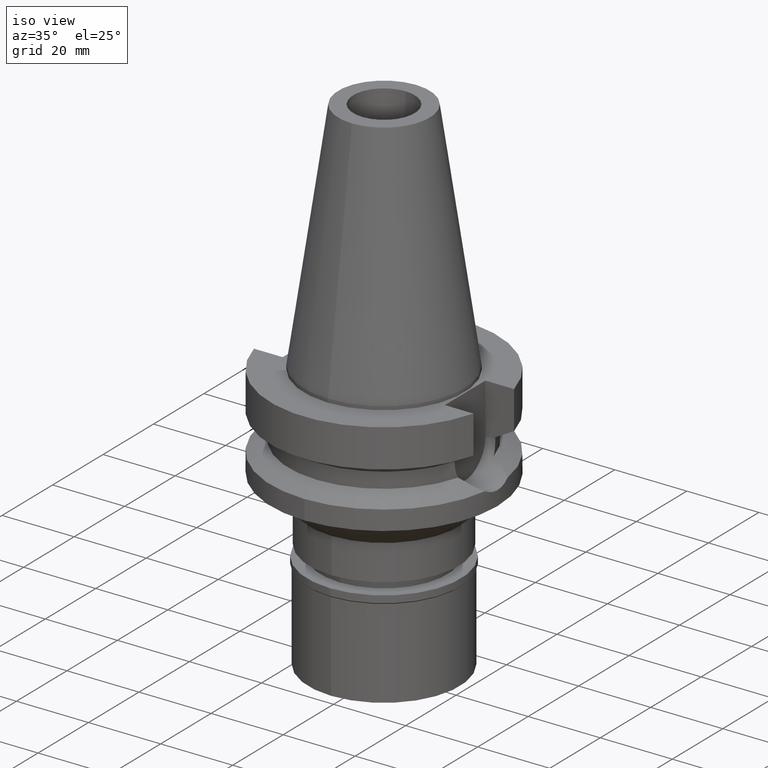
[diagram: clean part render]
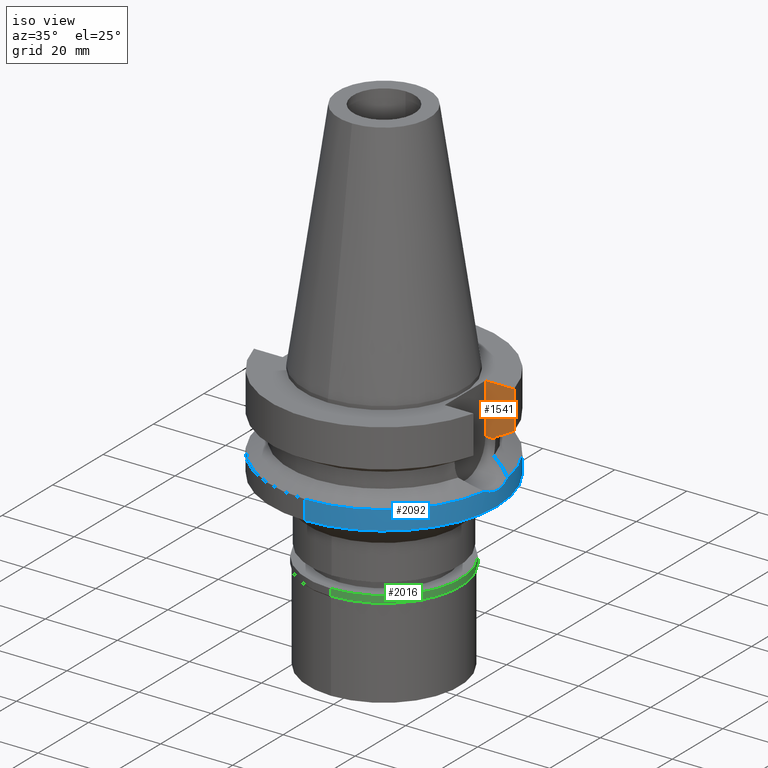
[diagram: same view with three faces highlighted in distinct colors, each labeled with its STEP entity id]
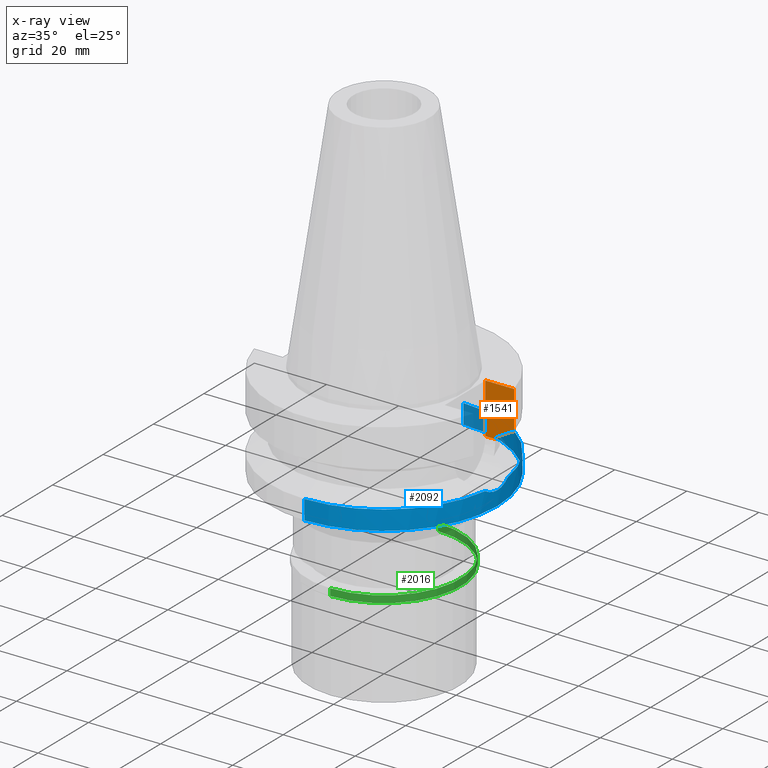
[diagram: x-ray of the same camera — body ghosted, the three highlighted faces saturated]
A machine part, iso view with three faces highlighted in distinct colors.
The next image is the same camera in x-ray (body ghosted, the three faces saturated) — at least one of them is partly hidden behind the body in this view.
Their STEP definitions:

[orange] entity #1541 — the highlighted planar face has unit normal (0, 1, 0).
#34 = EDGE_CURVE ( 'NONE', #2981, #2433, #649, .T. ) ;
#120 = DIRECTION ( 'NONE',  ( -0.0000000000000000000, 1.000000000000000000, 0.0000000000000000000 ) ) ;
#185 = CARTESIAN_POINT ( 'NONE',  ( 25.24772266958000344, 8.050000000000000711, -14.94999999999999929 ) ) ;
#284 = DIRECTION ( 'NONE',  ( 0.0000000000000000000, 0.0000000000000000000, -1.000000000000000000 ) ) ;
#290 = CARTESIAN_POINT ( 'NONE',  ( 25.24772266958000344, 8.050000000000000711, -14.94999999999999929 ) ) ;
#305 = ORIENTED_EDGE ( 'NONE', *, *, #951, .F. ) ;
#306 = VECTOR ( 'NONE', #1310, 1000.000000000000227 ) ;
#319 = CARTESIAN_POINT ( 'NONE',  ( 25.24772413898999801, 8.049995391397999356, -14.45229221434999900 ) ) ;
#349 = PLANE ( 'NONE',  #1185 ) ;
#375 = LINE ( 'NONE', #823, #306 ) ;
#416 = LINE ( 'NONE', #185, #1873 ) ;
#507 = ORIENTED_EDGE ( 'NONE', *, *, #2698, .T. ) ;
#581 = CARTESIAN_POINT ( 'NONE',  ( 22.50000000000000000, 8.050000000000000711, -1.000000000000000000 ) ) ;
#628 = VERTEX_POINT ( 'NONE', #2156 ) ;
#649 = LINE ( 'NONE', #2554, #1811 ) ;
#789 = ORIENTED_EDGE ( 'NONE', *, *, #1245, .T. ) ;
#823 = CARTESIAN_POINT ( 'NONE',  ( 30.45402291605999778, 8.049999268812999986, -11.56551223831000108 ) ) ;
#896 = EDGE_LOOP ( 'NONE', ( #305, #789, #1560, #2309, #1636, #507 ) ) ;
#951 = EDGE_CURVE ( 'NONE', #628, #2558, #1727, .T. ) ;
#970 = CARTESIAN_POINT ( 'NONE',  ( 25.24772413898999801, 8.049995391397999356, -14.45229221434999900 ) ) ;
#1185 = AXIS2_PLACEMENT_3D ( 'NONE', #1320, #120, #1989 ) ;
#1245 = EDGE_CURVE ( 'NONE', #628, #1406, #375, .T. ) ;
#1310 = DIRECTION ( 'NONE',  ( -1.829310043821989608E-08, 6.920501880590960594E-08, 0.9999999999999973355 ) ) ;
#1320 = CARTESIAN_POINT ( 'NONE',  ( 31.50000000000000000, 8.050000000000000711, -14.94999999999999929 ) ) ;
#1385 = DIRECTION ( 'NONE',  ( 1.000000000000000000, -1.292966614911000084E-14, 3.297064868023000075E-14 ) ) ;
#1406 = VERTEX_POINT ( 'NONE', #1535 ) ;
#1410 = DIRECTION ( 'NONE',  ( 1.000000000000000000, -3.506251283225999947E-14, 0.0000000000000000000 ) ) ;
#1514 = VERTEX_POINT ( 'NONE', #581 ) ;
#1521 = FACE_OUTER_BOUND ( 'NONE', #896, .T. ) ;
#1535 = CARTESIAN_POINT ( 'NONE',  ( 30.45402272279000044, 8.050000000000000711, -1.000000000000000000 ) ) ;
#1541 = ADVANCED_FACE ( 'NONE', ( #1521 ), #349, .F. ) ;
#1560 = ORIENTED_EDGE ( 'NONE', *, *, #2957, .F. ) ;
#1636 = ORIENTED_EDGE ( 'NONE', *, *, #34, .T. ) ;
#1689 = CARTESIAN_POINT ( 'NONE',  ( 26.83754589215579500, 8.049990772587381826, -13.57774903672709321 ) ) ;
#1727 = B_SPLINE_CURVE_WITH_KNOTS ( 'NONE', 3,
 ( #1943, #1929, #1689, #970 ),
 .UNSPECIFIED., .F., .F.,
 ( 4, 4 ),
 ( 0.0000000000000000000, 1.000000000000000000 ),
 .UNSPECIFIED. ) ;
#1811 = VECTOR ( 'NONE', #1385, 1000.000000000000000 ) ;
#1855 = LINE ( 'NONE', #2621, #2028 ) ;
#1873 = VECTOR ( 'NONE', #2320, 999.9999999999998863 ) ;
#1929 = CARTESIAN_POINT ( 'NONE',  ( 28.57292303220847529, 8.049998538576042861, -12.61549620223704693 ) ) ;
#1943 = CARTESIAN_POINT ( 'NONE',  ( 30.45402291605999778, 8.049999268812999986, -11.56551223831000108 ) ) ;
#1989 = DIRECTION ( 'NONE',  ( 1.000000000000000000, 0.0000000000000000000, 0.0000000000000000000 ) ) ;
#2028 = VECTOR ( 'NONE', #284, 1000.000000000000000 ) ;
#2156 = CARTESIAN_POINT ( 'NONE',  ( 30.45402291605999778, 8.049999268812999986, -11.56551223831000108 ) ) ;
#2309 = ORIENTED_EDGE ( 'NONE', *, *, #2991, .T. ) ;
#2320 = DIRECTION ( 'NONE',  ( 2.952351908413916126E-06, -9.259653352525731141E-06, 0.9999999999527713346 ) ) ;
#2361 = LINE ( 'NONE', #2604, #2854 ) ;
#2433 = VERTEX_POINT ( 'NONE', #290 ) ;
#2554 = CARTESIAN_POINT ( 'NONE',  ( 22.50000000000000000, 8.050000000000000711, -14.94999999999999929 ) ) ;
#2558 = VERTEX_POINT ( 'NONE', #319 ) ;
#2604 = CARTESIAN_POINT ( 'NONE',  ( 22.50000000000000000, 8.050000000000000711, -1.000000000000000000 ) ) ;
#2621 = CARTESIAN_POINT ( 'NONE',  ( 22.50000000000000000, 8.050000000000000711, -1.000000000000000000 ) ) ;
#2698 = EDGE_CURVE ( 'NONE', #2433, #2558, #416, .T. ) ;
#2845 = CARTESIAN_POINT ( 'NONE',  ( 22.50000000000000000, 8.050000000000000711, -14.94999999999999929 ) ) ;
#2854 = VECTOR ( 'NONE', #1410, 1000.000000000000000 ) ;
#2957 = EDGE_CURVE ( 'NONE', #1514, #1406, #2361, .T. ) ;
#2981 = VERTEX_POINT ( 'NONE', #2845 ) ;
#2991 = EDGE_CURVE ( 'NONE', #1514, #2981, #1855, .T. ) ;

[blue] entity #2092 — the highlighted cylindrical surface (partial cylindrical patch) has radius 31.5 mm, axis along (0, 0, -1).
#2 = EDGE_CURVE ( 'NONE', #1837, #2940, #327, .T. ) ;
#49 = EDGE_CURVE ( 'NONE', #300, #1737, #2740, .T. ) ;
#122 = DIRECTION ( 'NONE',  ( 0.0000000000000000000, 0.0000000000000000000, 1.000000000000000000 ) ) ;
#186 = CIRCLE ( 'NONE', #859, 31.50000000000000000 ) ;
#213 = DIRECTION ( 'NONE',  ( 0.0000000000000000000, 1.000000000000000000, 0.0000000000000000000 ) ) ;
#228 = CARTESIAN_POINT ( 'NONE',  ( 31.35693801589488316, 3.093611705962666658, -22.42394398293349411 ) ) ;
#233 = AXIS2_PLACEMENT_3D ( 'NONE', #1574, #2778, #213 ) ;
#281 = CARTESIAN_POINT ( 'NONE',  ( 31.50000000000000000, 1.151867556761000151E-10, -23.00000000000000000 ) ) ;
#300 = VERTEX_POINT ( 'NONE', #1763 ) ;
#327 = CIRCLE ( 'NONE', #233, 31.50000000000000000 ) ;
#409 = VECTOR ( 'NONE', #1561, 1000.000000000000000 ) ;
#465 = CARTESIAN_POINT ( 'NONE',  ( 0.0000000000000000000, 31.50000000000000000, -21.63449434733000132 ) ) ;
#486 = ORIENTED_EDGE ( 'NONE', *, *, #2339, .T. ) ;
#587 = CARTESIAN_POINT ( 'NONE',  ( 0.0000000000000000000, 31.50000000000000000, -21.63449434733000132 ) ) ;
#625 = FACE_OUTER_BOUND ( 'NONE', #1743, .T. ) ;
#669 = DIRECTION ( 'NONE',  ( 0.0000000000000000000, 0.0000000000000000000, -1.000000000000000000 ) ) ;
#692 = CARTESIAN_POINT ( 'NONE',  ( 31.49259283277175570, -0.7875330232212766068, -22.97108977747452840 ) ) ;
#700 = VERTEX_POINT ( 'NONE', #281 ) ;
#733 = CARTESIAN_POINT ( 'NONE',  ( 31.50000000000000000, 1.151867556761000151E-10, -23.00000000000000000 ) ) ;
#859 = AXIS2_PLACEMENT_3D ( 'NONE', #2461, #122, #1733 ) ;
#937 = CARTESIAN_POINT ( 'NONE',  ( 31.34929755511949878, -3.083187754480260168, -22.38882528197985877 ) ) ;
#1122 = EDGE_CURVE ( 'NONE', #1737, #2904, #186, .T. ) ;
#1140 = DIRECTION ( 'NONE',  ( 0.0000000000000000000, -1.099151708819000049E-13, -1.000000000000000000 ) ) ;
#1182 = CARTESIAN_POINT ( 'NONE',  ( 31.50000000000000000, 1.151867556761000151E-10, -23.00000000000000000 ) ) ;
#1194 = CARTESIAN_POINT ( 'NONE',  ( 31.17899877608999759, -4.485536235554000051, -21.63449434733000132 ) ) ;
#1208 = CARTESIAN_POINT ( 'NONE',  ( 31.22673700258599538, -4.153707435768996703, -21.85716341219919912 ) ) ;
#1264 = EDGE_CURVE ( 'NONE', #1837, #2904, #1342, .T. ) ;
#1288 = AXIS2_PLACEMENT_3D ( 'NONE', #2500, #669, #1820 ) ;
#1334 = B_SPLINE_CURVE_WITH_KNOTS ( 'NONE', 3,
 ( #733, #1425, #692, #1841, #1669, #1625, #2819, #937, #2567, #2804, #1208, #1194 ),
 .UNSPECIFIED., .F., .F.,
 ( 4, 2, 2, 2, 2, 4 ),
 ( 0.0000000000000000000, 0.2500000000000000000, 0.4999999999999998890, 0.6250000000000000000, 0.7500000000000000000, 1.000000000000000000 ),
 .UNSPECIFIED. ) ;
#1342 = LINE ( 'NONE', #587, #409 ) ;
#1414 = CARTESIAN_POINT ( 'NONE',  ( 31.46967100606623546, 1.577276732186245534, -22.88364154176840870 ) ) ;
#1425 = CARTESIAN_POINT ( 'NONE',  ( 31.50000000000144240, -0.3946959684656091705, -23.00000000000000000 ) ) ;
#1453 = CARTESIAN_POINT ( 'NONE',  ( 0.0000000000000000000, -31.50000000000000000, -27.00000000000000000 ) ) ;
#1561 = DIRECTION ( 'NONE',  ( 0.0000000000000000000, 1.099151708819000049E-13, -1.000000000000000000 ) ) ;
#1562 = CYLINDRICAL_SURFACE ( 'NONE', #1288, 31.50000000000000000 ) ;
#1574 = CARTESIAN_POINT ( 'NONE',  ( 0.0000000000000000000, 0.0000000000000000000, -21.63449434733000132 ) ) ;
#1586 = CARTESIAN_POINT ( 'NONE',  ( 0.0000000000000000000, -31.50000000000000000, -21.63449434733000132 ) ) ;
#1596 = B_SPLINE_CURVE_WITH_KNOTS ( 'NONE', 3,
 ( #2625, #2151, #228, #1414, #1901, #1182 ),
 .UNSPECIFIED., .F., .F.,
 ( 4, 2, 4 ),
 ( 0.0000000000000000000, 0.5000000000000000000, 1.000000000000000000 ),
 .UNSPECIFIED. ) ;
#1625 = CARTESIAN_POINT ( 'NONE',  ( 31.39916047825223799, -2.525684805076806150, -22.59611922556740282 ) ) ;
#1669 = CARTESIAN_POINT ( 'NONE',  ( 31.44157563117644472, -1.955190968561679510, -22.76907077990700756 ) ) ;
#1733 = DIRECTION ( 'NONE',  ( 0.0000000000000000000, -1.000000000000000000, 0.0000000000000000000 ) ) ;
#1737 = VERTEX_POINT ( 'NONE', #1453 ) ;
#1743 = EDGE_LOOP ( 'NONE', ( #2177, #2208, #1822, #1984, #2453, #486, #2267 ) ) ;
#1763 = CARTESIAN_POINT ( 'NONE',  ( 0.0000000000000000000, -31.50000000000000000, -21.63449434733000132 ) ) ;
#1820 = DIRECTION ( 'NONE',  ( 0.0000000000000000000, -1.000000000000000000, 0.0000000000000000000 ) ) ;
#1822 = ORIENTED_EDGE ( 'NONE', *, *, #1122, .T. ) ;
#1837 = VERTEX_POINT ( 'NONE', #465 ) ;
#1841 = CARTESIAN_POINT ( 'NONE',  ( 31.46324907267628745, -1.570849892302404349, -22.85516693721746151 ) ) ;
#1846 = DIRECTION ( 'NONE',  ( 0.9898094849552905306, -0.1423979757318985240, 0.0000000000000000000 ) ) ;
#1866 = CARTESIAN_POINT ( 'NONE',  ( 0.0000000000000000000, 31.50000000000000000, -27.00000000000000000 ) ) ;
#1871 = CARTESIAN_POINT ( 'NONE',  ( 31.17899877608999759, -4.485536235554000051, -21.63449434733000132 ) ) ;
#1895 = CARTESIAN_POINT ( 'NONE',  ( 31.17899877608999759, 4.485536235554000051, -21.63449434733000132 ) ) ;
#1901 = CARTESIAN_POINT ( 'NONE',  ( 31.49999999999711520, 0.7894177161169124712, -23.00000000000000355 ) ) ;
#1984 = ORIENTED_EDGE ( 'NONE', *, *, #1264, .F. ) ;
#2023 = AXIS2_PLACEMENT_3D ( 'NONE', #2511, #2049, #1846 ) ;
#2049 = DIRECTION ( 'NONE',  ( 0.0000000000000000000, 0.0000000000000000000, -1.000000000000000000 ) ) ;
#2092 = ADVANCED_FACE ( 'NONE', ( #625 ), #1562, .T. ) ;
#2151 = CARTESIAN_POINT ( 'NONE',  ( 31.27447206312942285, 3.821900642533546666, -22.07981770988099157 ) ) ;
#2177 = ORIENTED_EDGE ( 'NONE', *, *, #2286, .T. ) ;
#2208 = ORIENTED_EDGE ( 'NONE', *, *, #49, .T. ) ;
#2215 = CIRCLE ( 'NONE', #2023, 31.50000000000001421 ) ;
#2267 = ORIENTED_EDGE ( 'NONE', *, *, #2913, .T. ) ;
#2286 = EDGE_CURVE ( 'NONE', #2374, #300, #2215, .T. ) ;
#2339 = EDGE_CURVE ( 'NONE', #2940, #700, #1596, .T. ) ;
#2374 = VERTEX_POINT ( 'NONE', #1871 ) ;
#2453 = ORIENTED_EDGE ( 'NONE', *, *, #2, .T. ) ;
#2461 = CARTESIAN_POINT ( 'NONE',  ( 0.0000000000000000000, 0.0000000000000000000, -27.00000000000000000 ) ) ;
#2500 = CARTESIAN_POINT ( 'NONE',  ( 0.0000000000000000000, 0.0000000000000000000, 0.0000000000000000000 ) ) ;
#2511 = CARTESIAN_POINT ( 'NONE',  ( 0.0000000000000000000, 0.0000000000000000000, -21.63449434733000132 ) ) ;
#2567 = CARTESIAN_POINT ( 'NONE',  ( 31.33092022665522691, -3.264435029877764904, -22.31109388619713485 ) ) ;
#2625 = CARTESIAN_POINT ( 'NONE',  ( 31.17899877608999759, 4.485536235554000051, -21.63449434733000132 ) ) ;
#2740 = LINE ( 'NONE', #1586, #2924 ) ;
#2778 = DIRECTION ( 'NONE',  ( 0.0000000000000000000, 0.0000000000000000000, -1.000000000000000000 ) ) ;
#2804 = CARTESIAN_POINT ( 'NONE',  ( 31.27122532062663041, -3.806948935815542612, -22.05414693002463622 ) ) ;
#2819 = CARTESIAN_POINT ( 'NONE',  ( 31.38347861795985594, -2.713258882756028001, -22.53160022960461006 ) ) ;
#2904 = VERTEX_POINT ( 'NONE', #1866 ) ;
#2913 = EDGE_CURVE ( 'NONE', #700, #2374, #1334, .T. ) ;
#2924 = VECTOR ( 'NONE', #1140, 1000.000000000000000 ) ;
#2940 = VERTEX_POINT ( 'NONE', #1895 ) ;

[green] entity #2016 — the highlighted cylindrical surface (partial cylindrical patch) has radius 21.35 mm, axis along (0, 0, -1).
#158 = CIRCLE ( 'NONE', #2808, 21.35000000000000142 ) ;
#293 = ORIENTED_EDGE ( 'NONE', *, *, #2853, .T. ) ;
#322 = CARTESIAN_POINT ( 'NONE',  ( 0.0000000000000000000, 0.0000000000000000000, 0.0000000000000000000 ) ) ;
#341 = VERTEX_POINT ( 'NONE', #1079 ) ;
#356 = CYLINDRICAL_SURFACE ( 'NONE', #1919, 21.35000000000000142 ) ;
#443 = LINE ( 'NONE', #2259, #1051 ) ;
#664 = DIRECTION ( 'NONE',  ( 0.0000000000000000000, 0.0000000000000000000, -1.000000000000000000 ) ) ;
#678 = DIRECTION ( 'NONE',  ( 0.0000000000000000000, 0.0000000000000000000, -1.000000000000000000 ) ) ;
#713 = EDGE_LOOP ( 'NONE', ( #2207, #293, #2185, #2369 ) ) ;
#785 = DIRECTION ( 'NONE',  ( 0.0000000000000000000, 0.0000000000000000000, -1.000000000000000000 ) ) ;
#867 = CARTESIAN_POINT ( 'NONE',  ( 0.0000000000000000000, -21.35000000000000142, 0.0000000000000000000 ) ) ;
#980 = CARTESIAN_POINT ( 'NONE',  ( 0.0000000000000000000, 21.35000000000000142, 0.0000000000000000000 ) ) ;
#1051 = VECTOR ( 'NONE', #664, 1000.000000000000000 ) ;
#1079 = CARTESIAN_POINT ( 'NONE',  ( 0.0000000000000000000, 21.35000000000000142, -1.949999999999999956 ) ) ;
#1112 = DIRECTION ( 'NONE',  ( 0.0000000000000000000, 0.0000000000000000000, -1.000000000000000000 ) ) ;
#1221 = CARTESIAN_POINT ( 'NONE',  ( 0.0000000000000000000, -21.35000000000000142, 0.0000000000000000000 ) ) ;
#1391 = CIRCLE ( 'NONE', #1484, 21.35000000000000142 ) ;
#1484 = AXIS2_PLACEMENT_3D ( 'NONE', #2521, #2045, #2977 ) ;
#1519 = CARTESIAN_POINT ( 'NONE',  ( 0.0000000000000000000, -21.35000000000000142, -1.949999999999999956 ) ) ;
#1592 = VECTOR ( 'NONE', #678, 1000.000000000000000 ) ;
#1595 = EDGE_CURVE ( 'NONE', #2960, #2992, #158, .T. ) ;
#1840 = DIRECTION ( 'NONE',  ( 0.0000000000000000000, 1.000000000000000000, 0.0000000000000000000 ) ) ;
#1919 = AXIS2_PLACEMENT_3D ( 'NONE', #322, #785, #2917 ) ;
#2016 = ADVANCED_FACE ( 'NONE', ( #2885 ), #356, .T. ) ;
#2045 = DIRECTION ( 'NONE',  ( 0.0000000000000000000, 0.0000000000000000000, 1.000000000000000000 ) ) ;
#2185 = ORIENTED_EDGE ( 'NONE', *, *, #2866, .T. ) ;
#2207 = ORIENTED_EDGE ( 'NONE', *, *, #1595, .T. ) ;
#2259 = CARTESIAN_POINT ( 'NONE',  ( 0.0000000000000000000, 21.35000000000000142, 0.0000000000000000000 ) ) ;
#2369 = ORIENTED_EDGE ( 'NONE', *, *, #2802, .F. ) ;
#2521 = CARTESIAN_POINT ( 'NONE',  ( 0.0000000000000000000, 0.0000000000000000000, -1.949999999999999956 ) ) ;
#2776 = CARTESIAN_POINT ( 'NONE',  ( 0.0000000000000000000, 0.0000000000000000000, 0.0000000000000000000 ) ) ;
#2777 = LINE ( 'NONE', #867, #1592 ) ;
#2802 = EDGE_CURVE ( 'NONE', #2960, #341, #443, .T. ) ;
#2808 = AXIS2_PLACEMENT_3D ( 'NONE', #2776, #1112, #1840 ) ;
#2853 = EDGE_CURVE ( 'NONE', #2992, #3017, #2777, .T. ) ;
#2866 = EDGE_CURVE ( 'NONE', #3017, #341, #1391, .T. ) ;
#2885 = FACE_OUTER_BOUND ( 'NONE', #713, .T. ) ;
#2917 = DIRECTION ( 'NONE',  ( 0.0000000000000000000, -1.000000000000000000, 0.0000000000000000000 ) ) ;
#2960 = VERTEX_POINT ( 'NONE', #980 ) ;
#2977 = DIRECTION ( 'NONE',  ( 0.0000000000000000000, -1.000000000000000000, 0.0000000000000000000 ) ) ;
#2992 = VERTEX_POINT ( 'NONE', #1221 ) ;
#3017 = VERTEX_POINT ( 'NONE', #1519 ) ;